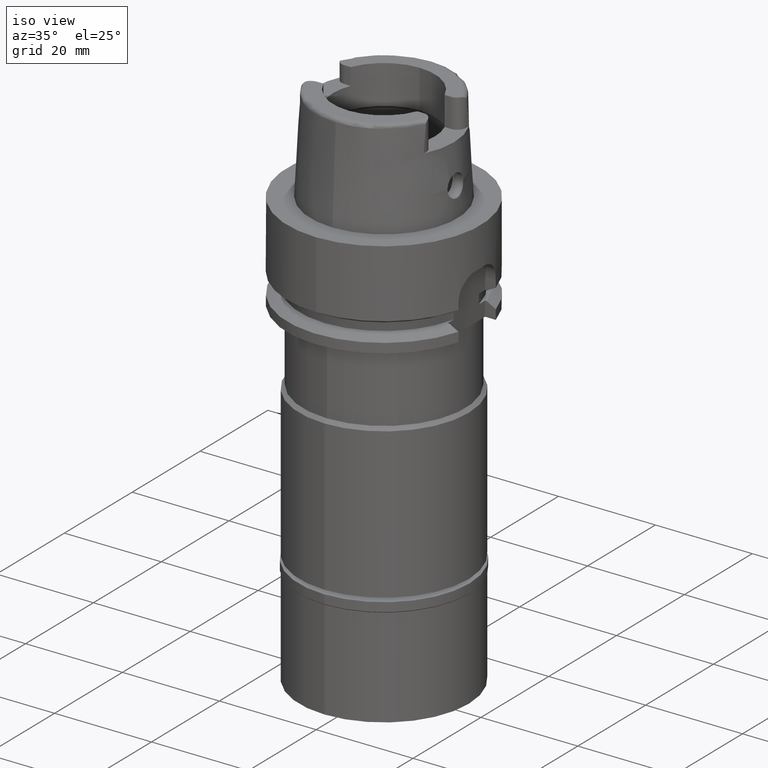
[diagram: clean part render]
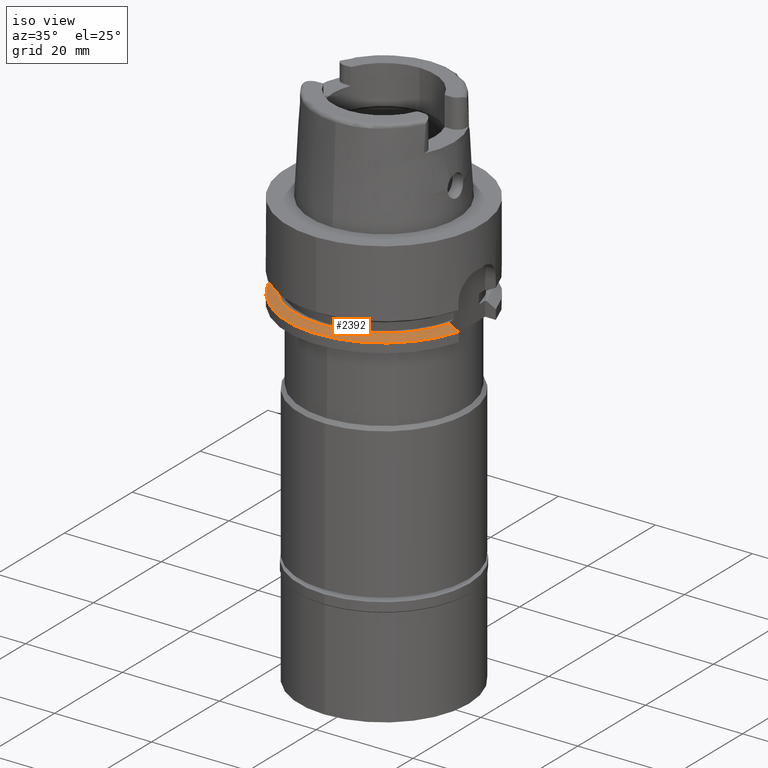
[diagram: same view with one face highlighted and labeled with its STEP entity id]
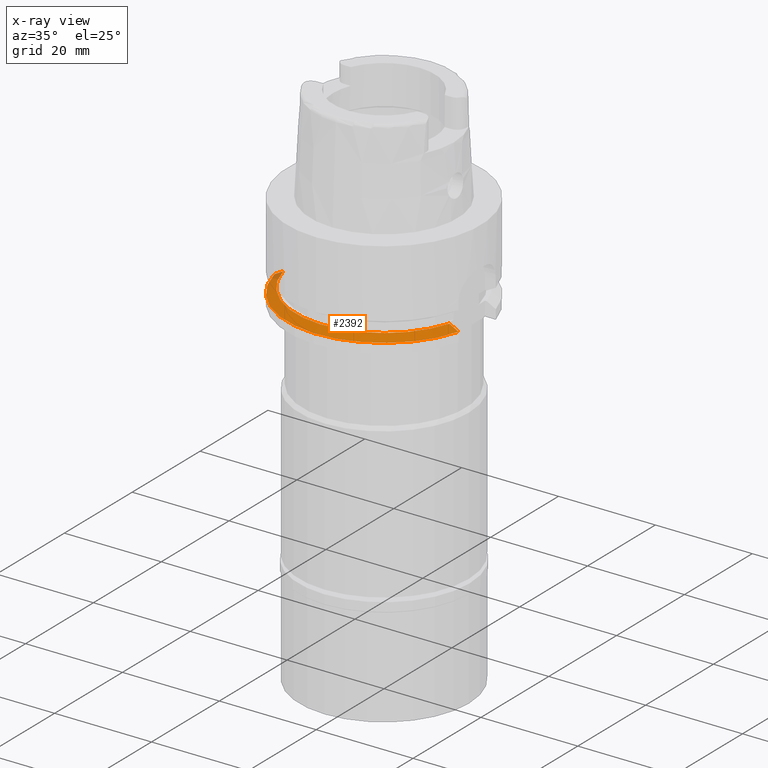
[diagram: x-ray of the same camera — body ghosted, the highlighted face saturated]
A machine part, iso view. The second image highlights one B-rep face of the part: STEP entity #2392.
The next image is the same camera in x-ray: the body ghosted, the highlighted face saturated — about 2% of this face is hidden behind the body in this view.
In plain terms, the highlighted conical surface has half-angle 60 deg.
Its self-contained STEP definition (entity closure, byte-faithful):
#38 = ORIENTED_EDGE ( 'NONE', *, *, #3331, .T. ) ;
#278 = CARTESIAN_POINT ( 'NONE',  ( 17.38268324078999783, -5.500000000000000000, -17.00000000000000000 ) ) ;
#336 = AXIS2_PLACEMENT_3D ( 'NONE', #4138, #2054, #5410 ) ;
#693 = ORIENTED_EDGE ( 'NONE', *, *, #1603, .F. ) ;
#741 = CARTESIAN_POINT ( 'NONE',  ( 19.01863988954999840, -5.500000482708999883, -17.90402535532000172 ) ) ;
#1081 = DIRECTION ( 'NONE',  ( 0.0000000000000000000, -1.000000000000000000, 0.0000000000000000000 ) ) ;
#1265 = B_SPLINE_CURVE_WITH_KNOTS ( 'NONE', 3,
 ( #278, #3606, #3220, #4943, #741, #1523 ),
 .UNSPECIFIED., .F., .F.,
 ( 4, 1, 1, 4 ),
 ( 0.0000000000000000000, 0.3333333333333000081, 0.6666666666667000474, 1.000000000000000000 ),
 .UNSPECIFIED. ) ;
#1386 = ORIENTED_EDGE ( 'NONE', *, *, #2980, .F. ) ;
#1523 = CARTESIAN_POINT ( 'NONE',  ( 19.22888452303000051, -5.499999999998999911, -18.02072594216000212 ) ) ;
#1603 = EDGE_CURVE ( 'NONE', #4843, #4645, #1265, .T. ) ;
#1635 = CARTESIAN_POINT ( 'NONE',  ( -18.88138594756999922, -4.500000000000000000, -17.68013035677000033 ) ) ;
#1945 = CARTESIAN_POINT ( 'NONE',  ( 0.0000000000000000000, 1.010206699502999904E-14, -17.00000000000000000 ) ) ;
#2054 = DIRECTION ( 'NONE',  ( 0.0000000000000000000, 0.0000000000000000000, -1.000000000000000000 ) ) ;
#2055 = CARTESIAN_POINT ( 'NONE',  ( -19.28530198036999721, -4.499999999998999911, -17.90716287119999706 ) ) ;
#2115 = FACE_OUTER_BOUND ( 'NONE', #4581, .T. ) ;
#2219 = CONICAL_SURFACE ( 'NONE', #2300, 19.11602540378000015, 1.047197551196400456 ) ;
#2230 = VERTEX_POINT ( 'NONE', #3621 ) ;
#2261 = DIRECTION ( 'NONE',  ( 0.0000000000000000000, 0.0000000000000000000, -1.000000000000000000 ) ) ;
#2300 = AXIS2_PLACEMENT_3D ( 'NONE', #4620, #3342, #5036 ) ;
#2392 = ADVANCED_FACE ( 'NONE', ( #2115 ), #2219, .T. ) ;
#2483 = CARTESIAN_POINT ( 'NONE',  ( -19.48717526991000071, -4.499999999998999911, -18.02072594216000212 ) ) ;
#2715 = CIRCLE ( 'NONE', #5272, 18.23205080757000118 ) ;
#2929 = CARTESIAN_POINT ( 'NONE',  ( 17.38268324078999783, -5.500000000000000000, -17.00000000000000000 ) ) ;
#2935 = CARTESIAN_POINT ( 'NONE',  ( 19.22888452303000051, -5.499999999998999911, -18.02072594216000212 ) ) ;
#2980 = EDGE_CURVE ( 'NONE', #4645, #2230, #3494, .T. ) ;
#3068 = VERTEX_POINT ( 'NONE', #3209 ) ;
#3209 = CARTESIAN_POINT ( 'NONE',  ( -17.66798451012000370, -4.500000000000000000, -17.00000000000000000 ) ) ;
#3220 = CARTESIAN_POINT ( 'NONE',  ( 17.98617742688999854, -5.499999994595999198, -17.33254134799999946 ) ) ;
#3331 = EDGE_CURVE ( 'NONE', #4843, #3068, #2715, .T. ) ;
#3342 = DIRECTION ( 'NONE',  ( 0.0000000000000000000, 0.0000000000000000000, -1.000000000000000000 ) ) ;
#3421 = CARTESIAN_POINT ( 'NONE',  ( -17.87038807252000083, -4.500000000000000000, -17.11324238619999960 ) ) ;
#3494 = CIRCLE ( 'NONE', #336, 20.00000000000000355 ) ;
#3606 = CARTESIAN_POINT ( 'NONE',  ( 17.58271707828000174, -5.500000149497000557, -17.11011050415000057 ) ) ;
#3621 = CARTESIAN_POINT ( 'NONE',  ( -19.48717526991000071, -4.499999999998999911, -18.02072594216000212 ) ) ;
#4086 = B_SPLINE_CURVE_WITH_KNOTS ( 'NONE', 3,
 ( #2483, #2055, #1635, #4614, #3421, #4191 ),
 .UNSPECIFIED., .F., .F.,
 ( 4, 1, 1, 4 ),
 ( 0.0000000000000000000, 0.3333333333333000081, 0.6666666666667000474, 1.000000000000000000 ),
 .UNSPECIFIED. ) ;
#4138 = CARTESIAN_POINT ( 'NONE',  ( 0.0000000000000000000, 1.010206699502999904E-14, -18.02072594216000212 ) ) ;
#4191 = CARTESIAN_POINT ( 'NONE',  ( -17.66798451012000370, -4.500000000000000000, -17.00000000000000000 ) ) ;
#4383 = ORIENTED_EDGE ( 'NONE', *, *, #4857, .F. ) ;
#4581 = EDGE_LOOP ( 'NONE', ( #4383, #1386, #693, #38 ) ) ;
#4614 = CARTESIAN_POINT ( 'NONE',  ( -18.27500004444999959, -4.500000000000000000, -17.33986716593999944 ) ) ;
#4620 = CARTESIAN_POINT ( 'NONE',  ( 0.0000000000000000000, 1.010206699502999904E-14, -17.51036297107999928 ) ) ;
#4645 = VERTEX_POINT ( 'NONE', #2935 ) ;
#4843 = VERTEX_POINT ( 'NONE', #2929 ) ;
#4857 = EDGE_CURVE ( 'NONE', #2230, #3068, #4086, .T. ) ;
#4943 = CARTESIAN_POINT ( 'NONE',  ( 18.60157143555000303, -5.499999794668999797, -17.67279774109999835 ) ) ;
#5036 = DIRECTION ( 'NONE',  ( 0.0000000000000000000, -1.000000000000000000, 0.0000000000000000000 ) ) ;
#5272 = AXIS2_PLACEMENT_3D ( 'NONE', #1945, #2261, #1081 ) ;
#5410 = DIRECTION ( 'NONE',  ( 0.9614442261514726251, -0.2749999999999924727, 0.0000000000000000000 ) ) ;